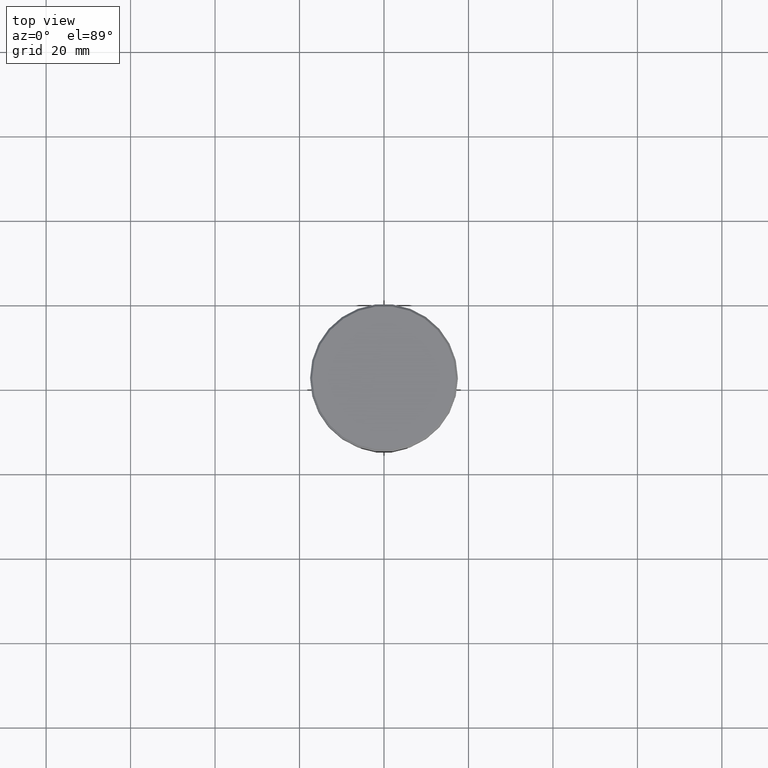
[diagram: clean part render]
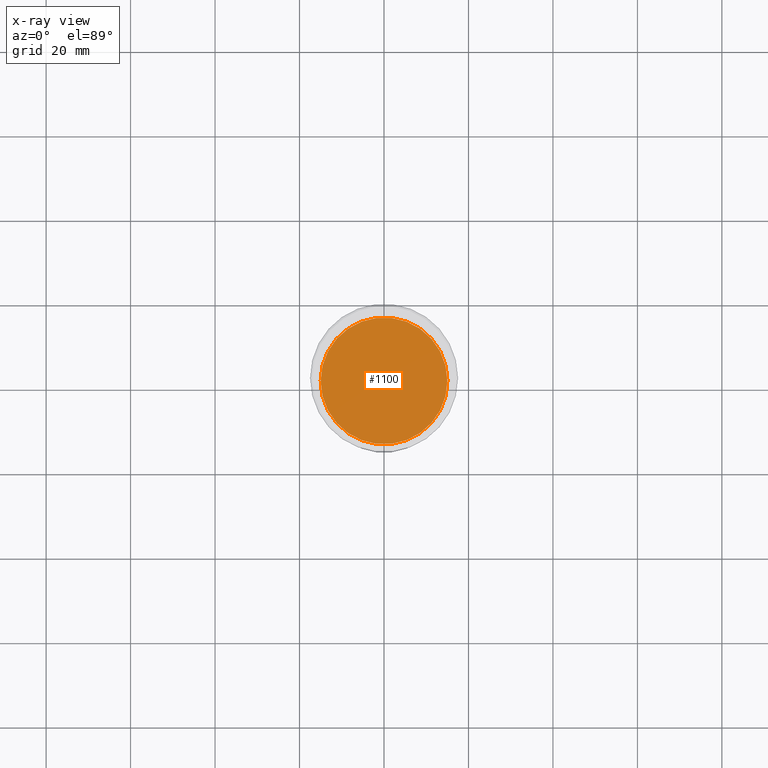
[diagram: x-ray — body ghosted, one internal face saturated and labeled with its STEP entity id]
A machine part, top view, then the same camera in x-ray: the body is ghosted and one INTERNAL B-rep face — a face not visible from any outside direction — is saturated and labeled: STEP entity #1100.
In plain terms, the highlighted planar face has unit normal (0, 0, -1).
Its self-contained STEP definition (entity closure, byte-faithful):
#36 = DIRECTION ( 'NONE',  ( 0.000000000000000000, 0.000000000000000000, -1.000000000000000000 ) ) ;
#58 = DIRECTION ( 'NONE',  ( 0.000000000000000000, 0.000000000000000000, -1.000000000000000000 ) ) ;
#77 = DIRECTION ( 'NONE',  ( -1.000000000000000000, 0.000000000000000000, 0.000000000000000000 ) ) ;
#130 = CIRCLE ( 'NONE', #672, 15.00000000000000000 ) ;
#151 = CARTESIAN_POINT ( 'NONE',  ( 0.000000000000000000, 0.000000000000000000, -41.99999999999999289 ) ) ;
#325 = EDGE_CURVE ( 'NONE', #827, #1099, #130, .T. ) ;
#380 = AXIS2_PLACEMENT_3D ( 'NONE', #1032, #58, #401 ) ;
#401 = DIRECTION ( 'NONE',  ( -1.000000000000000000, 0.000000000000000000, 0.000000000000000000 ) ) ;
#501 = EDGE_LOOP ( 'NONE', ( #1070, #1047 ) ) ;
#503 = DIRECTION ( 'NONE',  ( -1.000000000000000000, 0.000000000000000000, -0.000000000000000000 ) ) ;
#505 = CARTESIAN_POINT ( 'NONE',  ( -15.00000000000000000, 1.836970198721029194E-15, -41.99999999999999289 ) ) ;
#672 = AXIS2_PLACEMENT_3D ( 'NONE', #1148, #871, #77 ) ;
#766 = FACE_OUTER_BOUND ( 'NONE', #501, .T. ) ;
#796 = CIRCLE ( 'NONE', #380, 15.00000000000000000 ) ;
#819 = EDGE_CURVE ( 'NONE', #1099, #827, #796, .T. ) ;
#827 = VERTEX_POINT ( 'NONE', #505 ) ;
#871 = DIRECTION ( 'NONE',  ( 0.000000000000000000, 0.000000000000000000, -1.000000000000000000 ) ) ;
#923 = PLANE ( 'NONE',  #941 ) ;
#941 = AXIS2_PLACEMENT_3D ( 'NONE', #151, #36, #503 ) ;
#1032 = CARTESIAN_POINT ( 'NONE',  ( 0.000000000000000000, 0.000000000000000000, -41.99999999999999289 ) ) ;
#1047 = ORIENTED_EDGE ( 'NONE', *, *, #325, .T. ) ;
#1070 = ORIENTED_EDGE ( 'NONE', *, *, #819, .T. ) ;
#1099 = VERTEX_POINT ( 'NONE', #1101 ) ;
#1100 = ADVANCED_FACE ( 'NONE', ( #766 ), #923, .T. ) ;
#1101 = CARTESIAN_POINT ( 'NONE',  ( 15.00000000000000000, 0.000000000000000000, -41.99999999999999289 ) ) ;
#1148 = CARTESIAN_POINT ( 'NONE',  ( 0.000000000000000000, 0.000000000000000000, -41.99999999999999289 ) ) ;